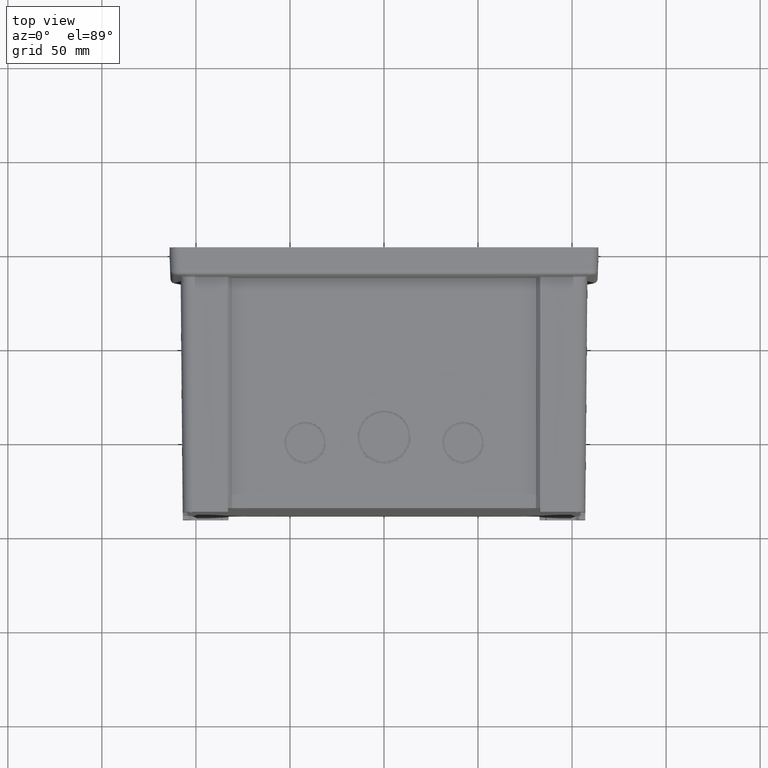
[diagram: clean part render]
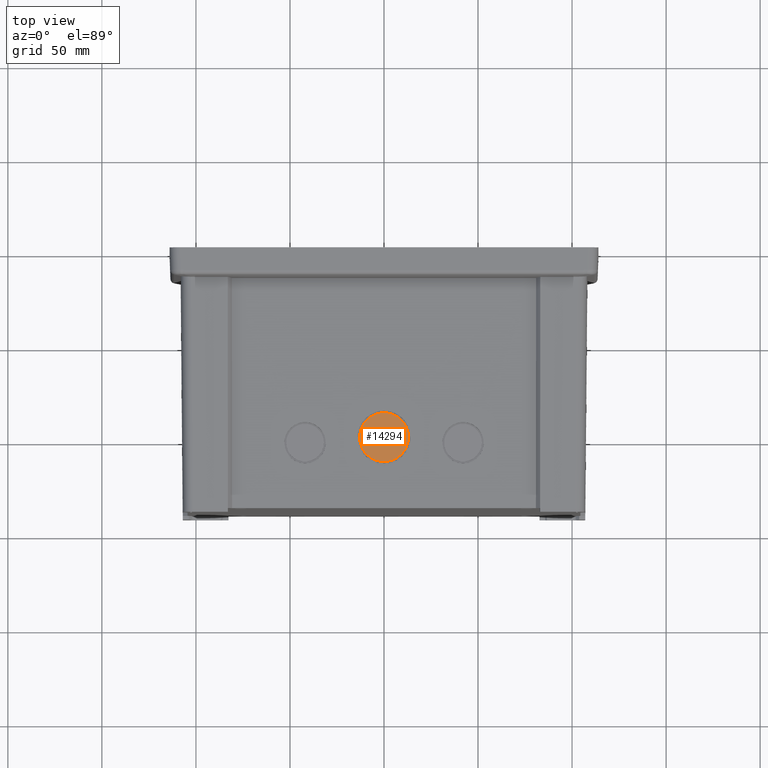
[diagram: same view with one face highlighted and labeled with its STEP entity id]
A machine part, top view. The second image highlights one B-rep face of the part: STEP entity #14294.
In plain terms, the highlighted planar face has unit normal (0, 0, 1).
Its self-contained STEP definition (entity closure, byte-faithful):
#4502=CARTESIAN_POINT('',(0.E0,-1.008E2,1.3E2));
#4503=DIRECTION('',(0.E0,0.E0,1.E0));
#4504=DIRECTION('',(1.E0,0.E0,0.E0));
#4505=AXIS2_PLACEMENT_3D('',#4502,#4503,#4504);
#4507=CARTESIAN_POINT('',(0.E0,-1.008E2,1.3E2));
#4508=DIRECTION('',(0.E0,0.E0,1.E0));
#4509=DIRECTION('',(-1.E0,0.E0,0.E0));
#4510=AXIS2_PLACEMENT_3D('',#4507,#4508,#4509);
#6614=CARTESIAN_POINT('',(1.3E1,-1.008E2,1.3E2));
#6615=CARTESIAN_POINT('',(-1.3E1,-1.008E2,1.3E2));
#6616=VERTEX_POINT('',#6614);
#6617=VERTEX_POINT('',#6615);
#14283=CARTESIAN_POINT('',(0.E0,0.E0,1.3E2));
#14284=DIRECTION('',(0.E0,0.E0,1.E0));
#14285=DIRECTION('',(1.E0,0.E0,0.E0));
#14286=AXIS2_PLACEMENT_3D('',#14283,#14284,#14285);
#14287=PLANE('',#14286);
#14289=ORIENTED_EDGE('',*,*,#14288,.F.);
#14291=ORIENTED_EDGE('',*,*,#14290,.F.);
#14292=EDGE_LOOP('',(#14289,#14291));
#14293=FACE_OUTER_BOUND('',#14292,.F.);
#14294=ADVANCED_FACE('',(#14293),#14287,.T.);
#4506=CIRCLE('',#4505,1.3E1);
#4511=CIRCLE('',#4510,1.3E1);
#14288=EDGE_CURVE('',#6616,#6617,#4506,.T.);
#14290=EDGE_CURVE('',#6617,#6616,#4511,.T.);